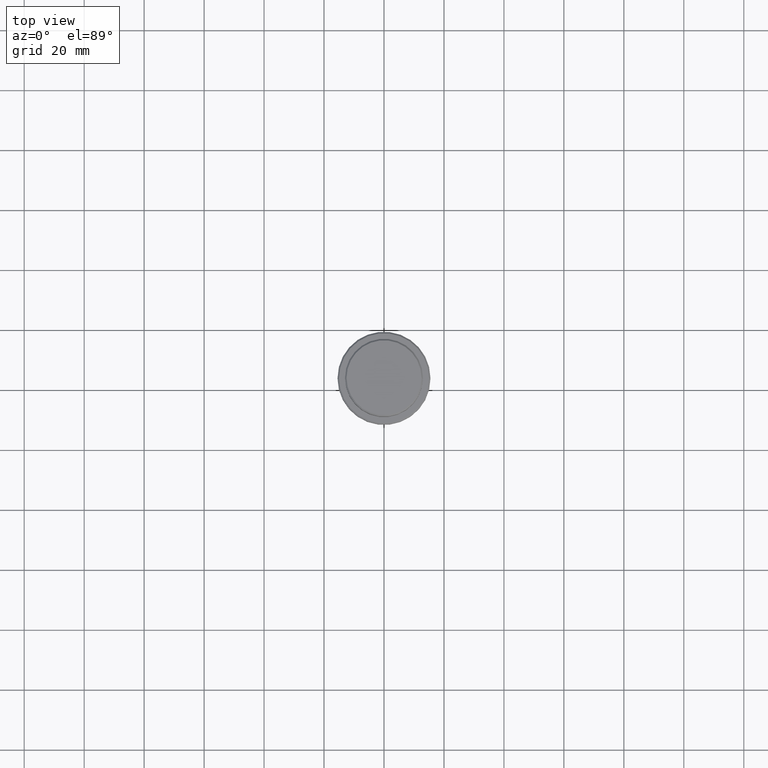
[diagram: clean part render]
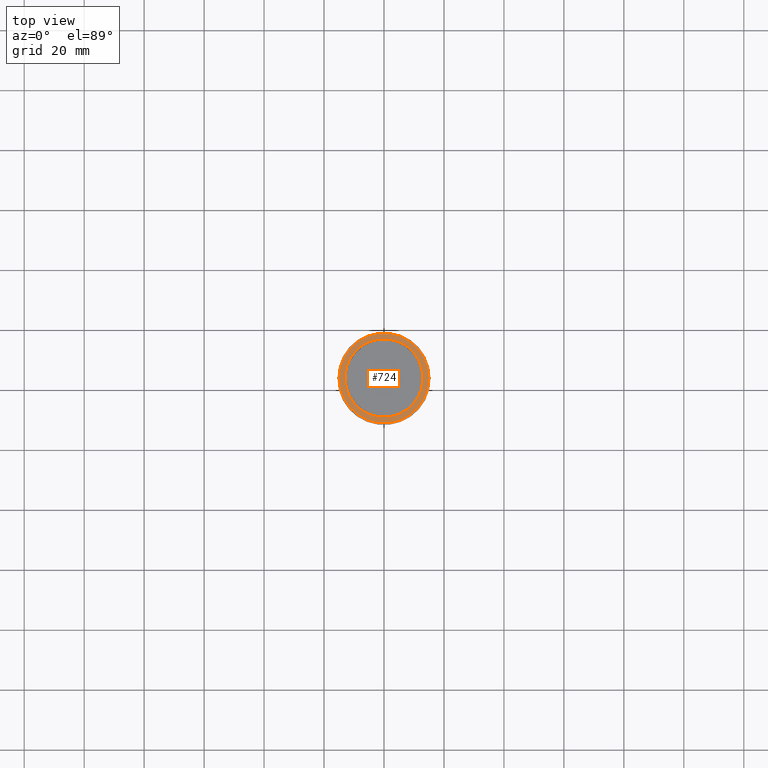
[diagram: same view with one face highlighted and labeled with its STEP entity id]
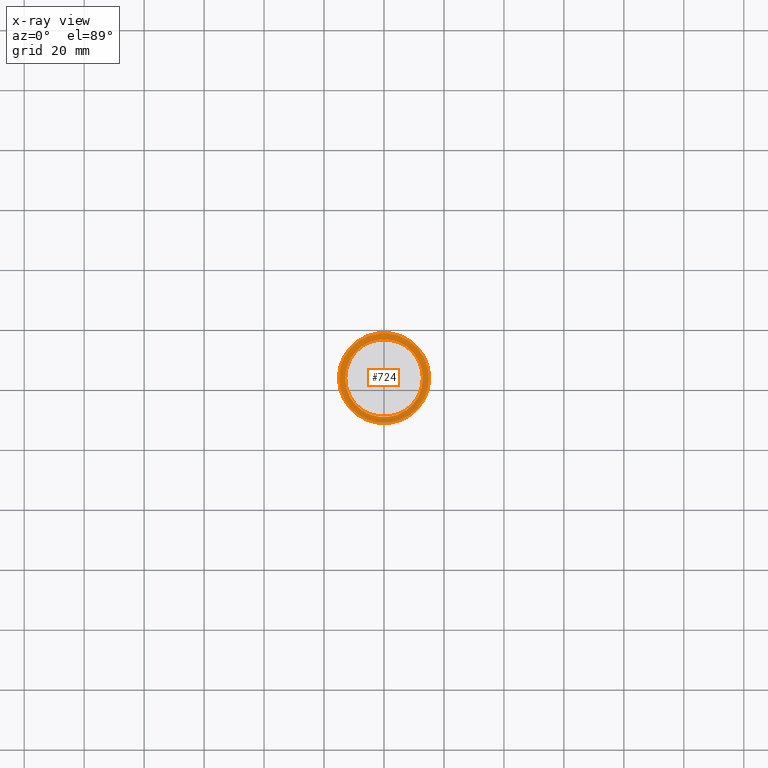
[diagram: x-ray of the same camera — body ghosted, the highlighted face saturated]
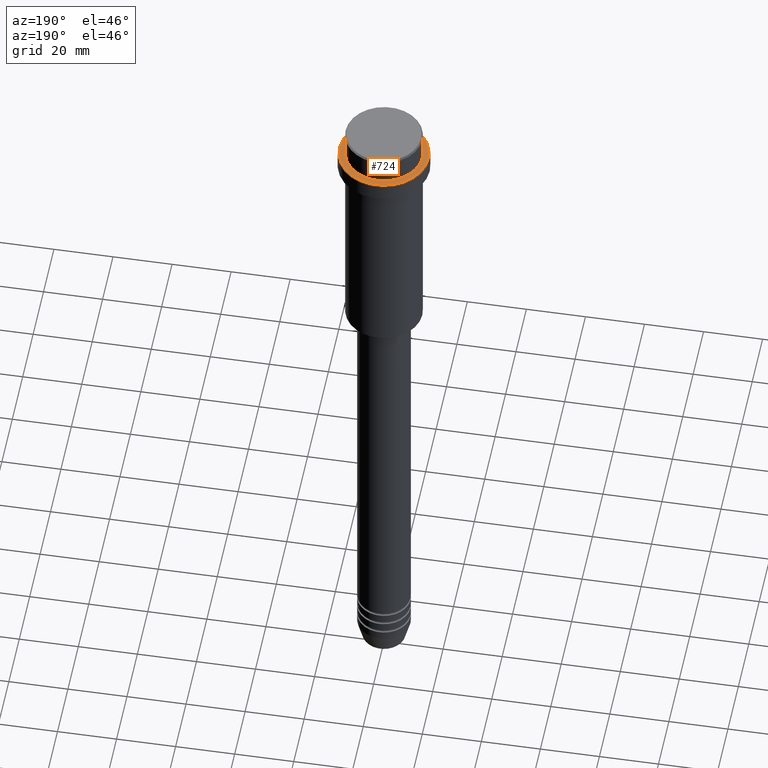
[diagram: same view with one face highlighted and labeled with its STEP entity id]
A machine part, top view. The second image highlights one B-rep face of the part: STEP entity #724.
The next image is the same camera in x-ray: the body ghosted, the highlighted face saturated — about 0% of this face is hidden behind the body in this view.
A second angle (auxiliary view) of the same face is appended — the face is thin or edge-on in the first view.
In plain terms, the highlighted planar face has unit normal (0, -0, 1).
Its self-contained STEP definition (entity closure, byte-faithful):
#20 = CARTESIAN_POINT ( 'NONE',  ( 0.000000000000000000, 0.000000000000000000, -9.000000000000001776 ) ) ;
#54 = DIRECTION ( 'NONE',  ( 1.000000000000000000, 0.000000000000000000, 0.000000000000000000 ) ) ;
#63 = FACE_OUTER_BOUND ( 'NONE', #1133, .T. ) ;
#133 = AXIS2_PLACEMENT_3D ( 'NONE', #1409, #890, #789 ) ;
#256 = DIRECTION ( 'NONE',  ( 0.000000000000000000, -0.000000000000000000, 1.000000000000000000 ) ) ;
#257 = VERTEX_POINT ( 'NONE', #473 ) ;
#270 = ORIENTED_EDGE ( 'NONE', *, *, #1082, .T. ) ;
#273 = ORIENTED_EDGE ( 'NONE', *, *, #641, .T. ) ;
#282 = CIRCLE ( 'NONE', #609, 14.99999999999995737 ) ;
#339 = ORIENTED_EDGE ( 'NONE', *, *, #1405, .T. ) ;
#433 = DIRECTION ( 'NONE',  ( -0.000000000000000000, -0.000000000000000000, 1.000000000000000000 ) ) ;
#460 = DIRECTION ( 'NONE',  ( 0.000000000000000000, 0.000000000000000000, -1.000000000000000000 ) ) ;
#473 = CARTESIAN_POINT ( 'NONE',  ( -12.99999999999999467, 1.592040838891558504E-15, -9.000000000000001776 ) ) ;
#587 = FACE_BOUND ( 'NONE', #914, .T. ) ;
#588 = CIRCLE ( 'NONE', #1068, 14.99999999999995737 ) ;
#609 = AXIS2_PLACEMENT_3D ( 'NONE', #1062, #433, #866 ) ;
#641 = EDGE_CURVE ( 'NONE', #1097, #1417, #588, .T. ) ;
#724 = ADVANCED_FACE ( 'NONE', ( #63, #587 ), #1038, .T. ) ;
#746 = AXIS2_PLACEMENT_3D ( 'NONE', #1151, #256, #54 ) ;
#776 = AXIS2_PLACEMENT_3D ( 'NONE', #1311, #460, #897 ) ;
#789 = DIRECTION ( 'NONE',  ( 1.000000000000000000, 0.000000000000000000, 0.000000000000000000 ) ) ;
#819 = ORIENTED_EDGE ( 'NONE', *, *, #964, .T. ) ;
#840 = CIRCLE ( 'NONE', #133, 12.99999999999999467 ) ;
#866 = DIRECTION ( 'NONE',  ( 1.000000000000000000, 0.000000000000000000, 0.000000000000000000 ) ) ;
#890 = DIRECTION ( 'NONE',  ( 0.000000000000000000, 0.000000000000000000, -1.000000000000000000 ) ) ;
#897 = DIRECTION ( 'NONE',  ( 1.000000000000000000, 0.000000000000000000, 0.000000000000000000 ) ) ;
#914 = EDGE_LOOP ( 'NONE', ( #270, #819 ) ) ;
#915 = DIRECTION ( 'NONE',  ( -0.000000000000000000, -0.000000000000000000, 1.000000000000000000 ) ) ;
#964 = EDGE_CURVE ( 'NONE', #257, #1019, #1251, .T. ) ;
#1019 = VERTEX_POINT ( 'NONE', #1096 ) ;
#1038 = PLANE ( 'NONE',  #746 ) ;
#1062 = CARTESIAN_POINT ( 'NONE',  ( 0.000000000000000000, 0.000000000000000000, -9.000000000000001776 ) ) ;
#1068 = AXIS2_PLACEMENT_3D ( 'NONE', #20, #915, #1329 ) ;
#1082 = EDGE_CURVE ( 'NONE', #1019, #257, #840, .T. ) ;
#1096 = CARTESIAN_POINT ( 'NONE',  ( 12.99999999999999467, 0.000000000000000000, -9.000000000000001776 ) ) ;
#1097 = VERTEX_POINT ( 'NONE', #1223 ) ;
#1101 = CARTESIAN_POINT ( 'NONE',  ( 14.99999999999995737, 1.867586368699711009E-15, -9.000000000000001776 ) ) ;
#1133 = EDGE_LOOP ( 'NONE', ( #273, #339 ) ) ;
#1151 = CARTESIAN_POINT ( 'NONE',  ( 0.000000000000000000, 12.49999999999999289, -9.000000000000001776 ) ) ;
#1223 = CARTESIAN_POINT ( 'NONE',  ( -14.99999999999995737, 0.000000000000000000, -9.000000000000001776 ) ) ;
#1251 = CIRCLE ( 'NONE', #776, 12.99999999999999467 ) ;
#1311 = CARTESIAN_POINT ( 'NONE',  ( 0.000000000000000000, 0.000000000000000000, -9.000000000000001776 ) ) ;
#1329 = DIRECTION ( 'NONE',  ( 1.000000000000000000, 0.000000000000000000, 0.000000000000000000 ) ) ;
#1405 = EDGE_CURVE ( 'NONE', #1417, #1097, #282, .T. ) ;
#1409 = CARTESIAN_POINT ( 'NONE',  ( 0.000000000000000000, 0.000000000000000000, -9.000000000000001776 ) ) ;
#1417 = VERTEX_POINT ( 'NONE', #1101 ) ;